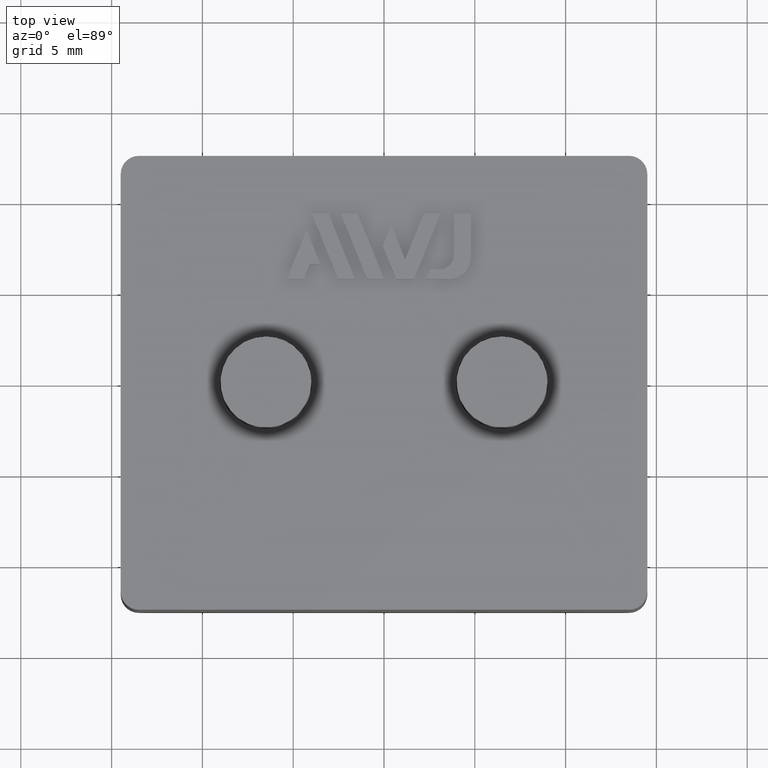
[diagram: clean part render]
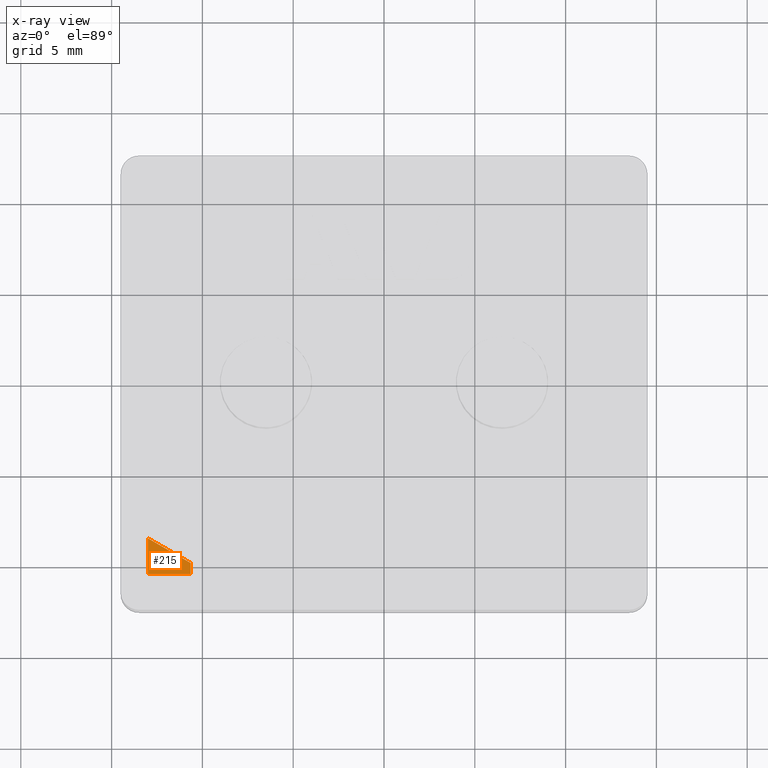
[diagram: x-ray — body ghosted, one internal face saturated and labeled with its STEP entity id]
A machine part, top view, then the same camera in x-ray: the body is ghosted and one INTERNAL B-rep face — a face not visible from any outside direction — is saturated and labeled: STEP entity #215.
In plain terms, the highlighted planar face has unit normal (0, -0, -1).
Its self-contained STEP definition (entity closure, byte-faithful):
#215 = ADVANCED_FACE( '', ( #578 ), #579, .T. );
#578 = FACE_OUTER_BOUND( '', #990, .T. );
#579 = PLANE( '', #991 );
#990 = EDGE_LOOP( '', ( #2235, #2236, #2237, #2238 ) );
#991 = AXIS2_PLACEMENT_3D( '', #2239, #2240, #2241 );
#2235 = ORIENTED_EDGE( '', *, *, #2980, .T. );
#2236 = ORIENTED_EDGE( '', *, *, #2977, .T. );
#2237 = ORIENTED_EDGE( '', *, *, #3029, .T. );
#2238 = ORIENTED_EDGE( '', *, *, #3030, .T. );
#2239 = CARTESIAN_POINT( '', ( -12.9999999999999, 10.4999999999999, 7.99999999999999 ) );
#2240 = DIRECTION( '', ( 0.000000000000000, -6.12303176911189E-017, -1.00000000000000 ) );
#2241 = DIRECTION( '', ( 0.000000000000000, 1.00000000000000, -6.12303176911189E-017 ) );
#2977 = EDGE_CURVE( '', #3720, #3721, #3722, .T. );
#2980 = EDGE_CURVE( '', #3725, #3720, #3726, .T. );
#3029 = EDGE_CURVE( '', #3721, #3801, #3802, .T. );
#3030 = EDGE_CURVE( '', #3801, #3725, #3803, .T. );
#3720 = VERTEX_POINT( '', #4865 );
#3721 = VERTEX_POINT( '', #4866 );
#3722 = LINE( '', #4867, #4868 );
#3725 = VERTEX_POINT( '', #4873 );
#3726 = LINE( '', #4874, #4875 );
#3801 = VERTEX_POINT( '', #4998 );
#3802 = LINE( '', #4999, #5000 );
#3803 = LINE( '', #5001, #5002 );
#4865 = CARTESIAN_POINT( '', ( -10.6396405194257, -9.89524581850617, 7.99999999999999 ) );
#4866 = CARTESIAN_POINT( '', ( -10.6396405194257, -10.4999999999999, 7.99999999999999 ) );
#4867 = CARTESIAN_POINT( '', ( -10.6396405194257, -12.7013756729741, 7.99999999999999 ) );
#4868 = VECTOR( '', #5513, 1000.00000000000 );
#4873 = CARTESIAN_POINT( '', ( -13.0000000000000, -8.53249163701233, 7.99999999999999 ) );
#4874 = CARTESIAN_POINT( '', ( -9.31982025971287, -10.6572444007333, 7.99999999999999 ) );
#4875 = VECTOR( '', #5516, 1000.00000000000 );
#4998 = CARTESIAN_POINT( '', ( -12.9999999999999, -10.4999999999999, 7.99999999999999 ) );
#4999 = CARTESIAN_POINT( '', ( 13.0000000000000, -10.4999999999999, 7.99999999999999 ) );
#5000 = VECTOR( '', #5565, 1000.00000000000 );
#5001 = CARTESIAN_POINT( '', ( -12.9999999999999, -10.4999999999999, 7.99999999999999 ) );
#5002 = VECTOR( '', #5566, 1000.00000000000 );
#5513 = DIRECTION( '', ( 4.99600361081321E-016, -1.00000000000000, 6.12303176911189E-017 ) );
#5516 = DIRECTION( '', ( 0.866025403784439, -0.500000000000000, 3.06151588455594E-017 ) );
#5565 = DIRECTION( '', ( -1.00000000000000, 0.000000000000000, 0.000000000000000 ) );
#5566 = DIRECTION( '', ( 0.000000000000000, 1.00000000000000, -6.12303176911189E-017 ) );